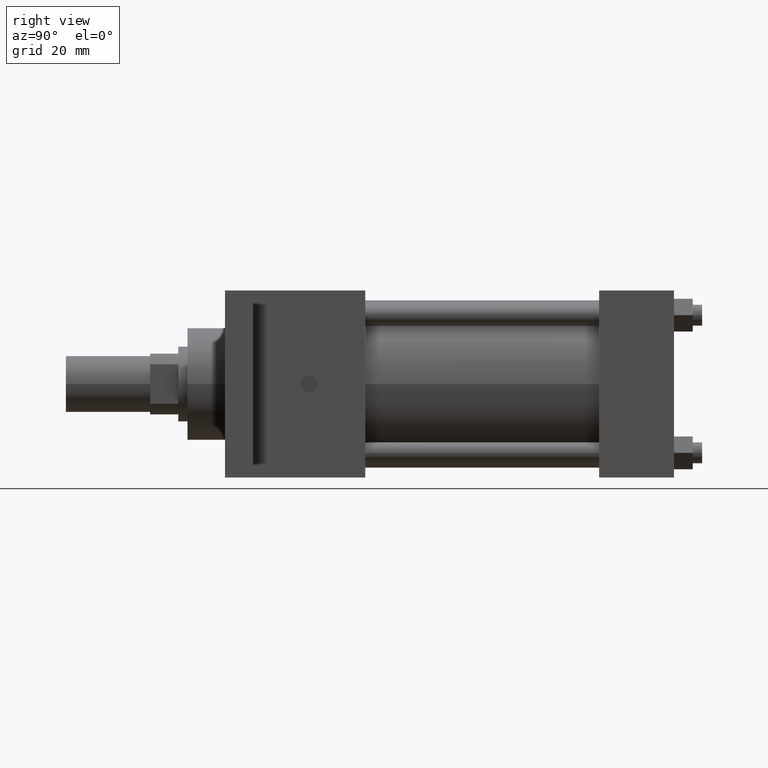
[diagram: clean part render]
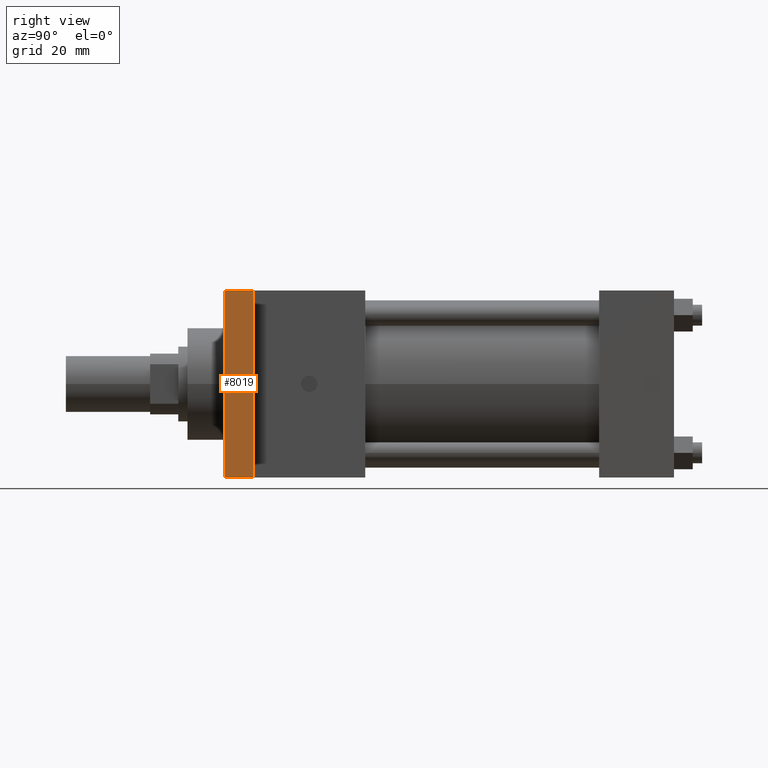
[diagram: same view with one face highlighted and labeled with its STEP entity id]
A machine part, right view. The second image highlights one B-rep face of the part: STEP entity #8019.
In plain terms, the highlighted planar face has unit normal (1, 0, 0).
Its self-contained STEP definition (entity closure, byte-faithful):
#489=VERTEX_POINT('',#491);
#491=CARTESIAN_POINT('',(5.238750000E+001,3.492500000E+001,-3.175000000E+001));
#504=VERTEX_POINT('',#505);
#505=CARTESIAN_POINT('',(5.238750000E+001,3.492500000E+001,3.175000000E+001));
#506=EDGE_CURVE('',#489,#504,#507,.T.);
#507=LINE('',#508,#509);
#508=CARTESIAN_POINT('',(5.238750000E+001,3.492500000E+001,-3.175000000E+001));
#509=VECTOR('',#510,1.0E+000);
#510=DIRECTION('',(0.0E+000,0.0E+000,1.0E+000));
#528=EDGE_CURVE('',#489,#533,#529,.T.);
#529=LINE('',#530,#531);
#530=CARTESIAN_POINT('',(5.238750000E+001,3.492500000E+001,-3.175000000E+001));
#531=VECTOR('',#532,1.0E+000);
#532=DIRECTION('',(0.0E+000,-1.0E+000,0.0E+000));
#533=VERTEX_POINT('',#534);
#534=CARTESIAN_POINT('',(5.238750000E+001,2.540000000E+001,-3.175000000E+001));
#585=FACE_OUTER_BOUND('',#586,.T.);
#586=EDGE_LOOP('',(#587,#588,#589,#590));
#587=ORIENTED_EDGE('',*,*,#591,.T.);
#588=ORIENTED_EDGE('',*,*,#598,.F.);
#589=ORIENTED_EDGE('',*,*,#528,.F.);
#590=ORIENTED_EDGE('',*,*,#506,.T.);
#591=EDGE_CURVE('',#504,#596,#592,.T.);
#592=LINE('',#593,#594);
#593=CARTESIAN_POINT('',(5.238750000E+001,3.492500000E+001,3.175000000E+001));
#594=VECTOR('',#595,1.0E+000);
#595=DIRECTION('',(0.0E+000,-1.0E+000,0.0E+000));
#596=VERTEX_POINT('',#597);
#597=CARTESIAN_POINT('',(5.238750000E+001,2.540000000E+001,3.175000000E+001));
#598=EDGE_CURVE('',#533,#596,#599,.T.);
#599=LINE('',#600,#601);
#600=CARTESIAN_POINT('',(5.238750000E+001,2.540000000E+001,-3.175000000E+001));
#601=VECTOR('',#602,1.0E+000);
#602=DIRECTION('',(0.0E+000,0.0E+000,1.0E+000));
#603=PLANE('',#604);
#604=AXIS2_PLACEMENT_3D('',#605,#606,#607);
#605=CARTESIAN_POINT('',(5.238750000E+001,3.492500000E+001,-3.175000000E+001));
#606=DIRECTION('',(1.0E+000,0.0E+000,0.0E+000));
#607=DIRECTION('',(0.0E+000,0.0E+000,-1.0E+000));
#8019=ADVANCED_FACE('',(#585),#603,.T.);